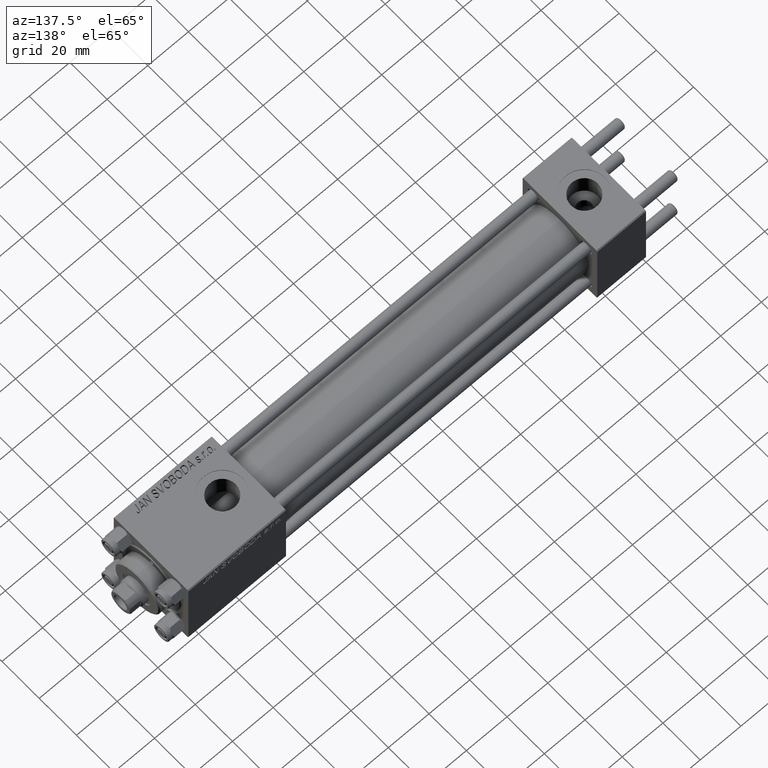
[diagram: clean part render]
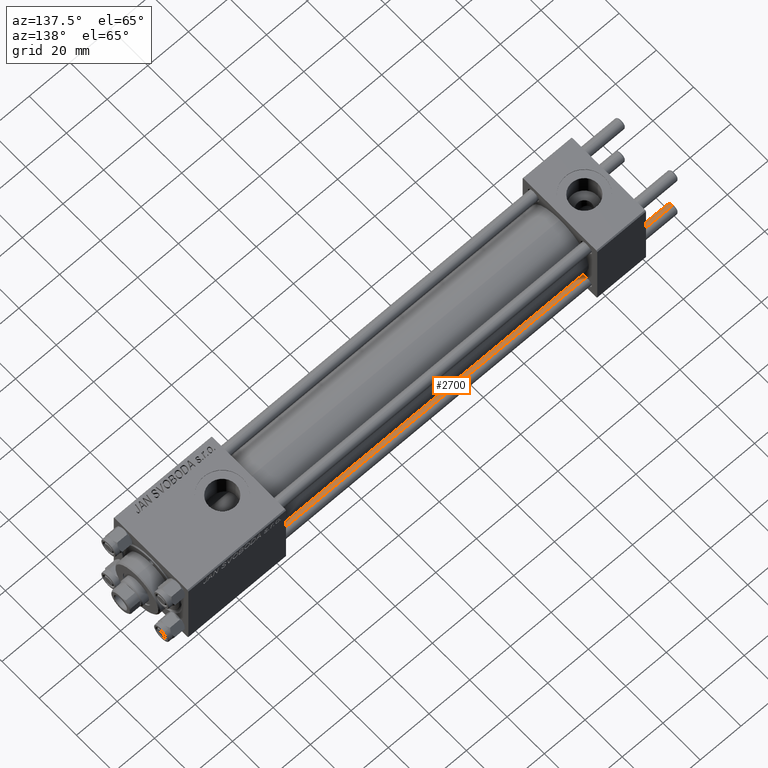
[diagram: same view with one face highlighted and labeled with its STEP entity id]
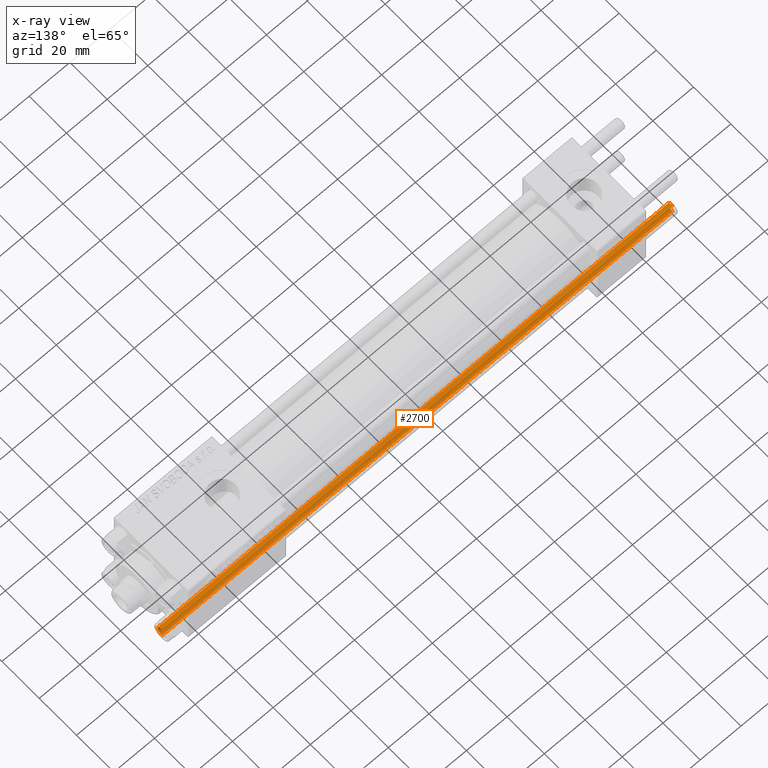
[diagram: x-ray of the same camera — body ghosted, the highlighted face saturated]
A machine part, auxiliary view. The second image highlights one B-rep face of the part: STEP entity #2700.
The next image is the same camera in x-ray: the body ghosted, the highlighted face saturated — about 0% of this face is hidden behind the body in this view.
In plain terms, the highlighted cylindrical surface (edge-blend (fillet) strip) has radius 2.5 mm, axis along (1, 0, -0).
Its self-contained STEP definition (entity closure, byte-faithful):
#579 = EDGE_CURVE ( 'NONE', #8456, #40892, #44209, .T. ) ;
#613 = VERTEX_POINT ( 'NONE', #1534 ) ;
#866 = CARTESIAN_POINT ( 'NONE',  ( -2.500000000000000000, 0.000000000000000000, 0.5000000000000004441 ) ) ;
#867 = EDGE_CURVE ( 'NONE', #40892, #48394, #37155, .T. ) ;
#1534 = CARTESIAN_POINT ( 'NONE',  ( 2.500000000000000000, 3.061616997868383141E-16, 251.5000000000000000 ) ) ;
#2275 = DIRECTION ( 'NONE',  ( -0.000000000000000000, -0.000000000000000000, -1.000000000000000000 ) ) ;
#2700 = ADVANCED_FACE ( 'NONE', ( #12131 ), #27259, .T. ) ;
#4018 = DIRECTION ( 'NONE',  ( -1.000000000000000000, 0.000000000000000000, 0.000000000000000000 ) ) ;
#5838 = LINE ( 'NONE', #9155, #16689 ) ;
#8456 = VERTEX_POINT ( 'NONE', #17719 ) ;
#9155 = CARTESIAN_POINT ( 'NONE',  ( 2.500000000000000000, 3.061616997868383141E-16, 252.0000000000000000 ) ) ;
#9653 = DIRECTION ( 'NONE',  ( -0.000000000000000000, -0.000000000000000000, -1.000000000000000000 ) ) ;
#11656 = CIRCLE ( 'NONE', #20538, 2.500000000000000000 ) ;
#12131 = FACE_OUTER_BOUND ( 'NONE', #49926, .T. ) ;
#14033 = ORIENTED_EDGE ( 'NONE', *, *, #24050, .F. ) ;
#16689 = VECTOR ( 'NONE', #9653, 1000.000000000000000 ) ;
#16915 = DIRECTION ( 'NONE',  ( 1.000000000000000000, 0.000000000000000000, 0.000000000000000000 ) ) ;
#17719 = CARTESIAN_POINT ( 'NONE',  ( -2.500000000000000000, 0.000000000000000000, 251.5000000000000000 ) ) ;
#18169 = EDGE_CURVE ( 'NONE', #613, #8456, #11656, .T. ) ;
#18959 = DIRECTION ( 'NONE',  ( -0.000000000000000000, -0.000000000000000000, -1.000000000000000000 ) ) ;
#20538 = AXIS2_PLACEMENT_3D ( 'NONE', #43821, #24891, #21110 ) ;
#21110 = DIRECTION ( 'NONE',  ( 1.000000000000000000, 0.000000000000000000, 0.000000000000000000 ) ) ;
#21540 = CARTESIAN_POINT ( 'NONE',  ( 2.500000000000000000, 3.061616997868383141E-16, 0.5000000000000004441 ) ) ;
#22364 = ORIENTED_EDGE ( 'NONE', *, *, #18169, .T. ) ;
#24050 = EDGE_CURVE ( 'NONE', #613, #48394, #5838, .T. ) ;
#24225 = CARTESIAN_POINT ( 'NONE',  ( 0.000000000000000000, 0.000000000000000000, 0.5000000000000004441 ) ) ;
#24891 = DIRECTION ( 'NONE',  ( 0.000000000000000000, 0.000000000000000000, -1.000000000000000000 ) ) ;
#25528 = ORIENTED_EDGE ( 'NONE', *, *, #579, .T. ) ;
#27259 = CYLINDRICAL_SURFACE ( 'NONE', #36296, 2.500000000000000000 ) ;
#29817 = AXIS2_PLACEMENT_3D ( 'NONE', #24225, #39618, #16915 ) ;
#34346 = CARTESIAN_POINT ( 'NONE',  ( 0.000000000000000000, 0.000000000000000000, 252.0000000000000000 ) ) ;
#36296 = AXIS2_PLACEMENT_3D ( 'NONE', #34346, #18959, #4018 ) ;
#37048 = VECTOR ( 'NONE', #2275, 1000.000000000000000 ) ;
#37155 = CIRCLE ( 'NONE', #29817, 2.500000000000000000 ) ;
#38999 = ORIENTED_EDGE ( 'NONE', *, *, #867, .T. ) ;
#39618 = DIRECTION ( 'NONE',  ( -0.000000000000000000, -0.000000000000000000, 1.000000000000000000 ) ) ;
#40892 = VERTEX_POINT ( 'NONE', #866 ) ;
#40919 = CARTESIAN_POINT ( 'NONE',  ( -2.500000000000000000, 0.000000000000000000, 252.0000000000000000 ) ) ;
#43821 = CARTESIAN_POINT ( 'NONE',  ( 0.000000000000000000, 0.000000000000000000, 251.5000000000000000 ) ) ;
#44209 = LINE ( 'NONE', #40919, #37048 ) ;
#48394 = VERTEX_POINT ( 'NONE', #21540 ) ;
#49926 = EDGE_LOOP ( 'NONE', ( #14033, #22364, #25528, #38999 ) ) ;